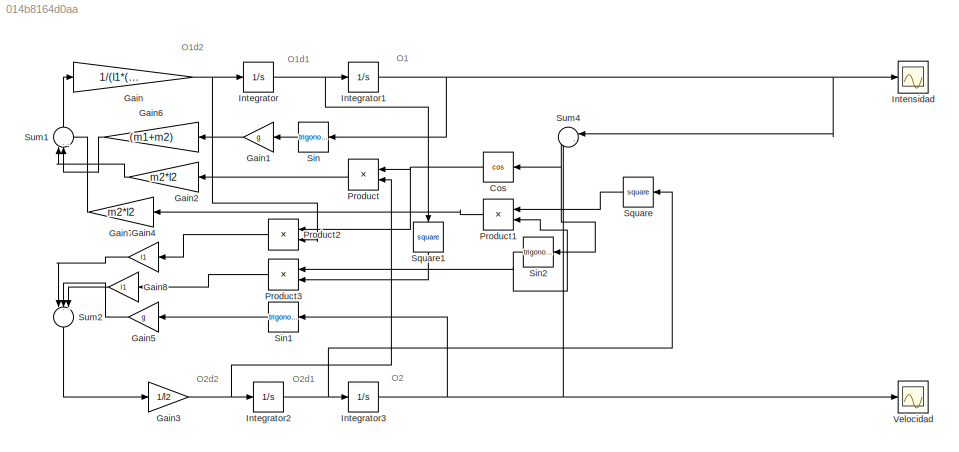
MODEL slx_014b8164d0aa
KIND model
CONFIG AbsTol = auto
CONFIG EnableMultiTasking = off
CONFIG FixedStep = auto
CONFIG MaxStep = .00001
CONFIG MinStep = auto
CONFIG RelTol = 1e-3
CONFIG SampleTimeConstraint = Unconstrained
CONFIG SolverName = VariableStepAuto
CONFIG StartTime = 0.0
CONFIG StopTime = 10.0
BLOCK [Trigonometry] Cos
  NameLocation = top
  Operator = cos
BLOCK [Gain] Gain
  Gain = 1/(l1*(m1+m2))
BLOCK [Gain] Gain1
  Gain = g
  NameLocation = top
BLOCK [Gain] Gain2
  Gain = m2*l2
  NameLocation = top
BLOCK [Gain] Gain3
  Gain = 1/l2
BLOCK [Gain] Gain4
  Gain = l1
  NameLocation = top
BLOCK [Gain] Gain5
  Gain = g
  NameLocation = top
BLOCK [Gain] Gain6
  Gain = (m1+m2)
  NameLocation = top
BLOCK [Gain] Gain7
  Gain = m2*l2
  NameLocation = top
BLOCK [Gain] Gain8
  Gain = l1
  NameLocation = top
BLOCK [Integrator] Integrator
BLOCK [Integrator] Integrator1
BLOCK [Integrator] Integrator2
BLOCK [Integrator] Integrator3
  InitialCondition = (35*pi)/180
BLOCK [Scope] Intensidad
  Floating = off
  NumInputPorts = 1
  ScopeSpecificationString = Simulink.scopes.TimeScopeBlockCfg('CurrentConfiguration', extmgr.ConfigurationSet(extmgr.Configuration('Core','General UI',true),extmgr.Configuration('Core','Source UI',true),extmgr.Configuration('Sources','WiredSimulink',true),extmgr.Configuration('Visuals','Time Domain',true,'SerializedDisplays',{struct('MinYLimReal','-0.39249','MaxYLimReal','0.39137','YLabelReal','','MinYLimMag','0.00000','MaxY...<+1358ch>
BLOCK [Product] Product
  NameLocation = top
BLOCK [Product] Product1
  NameLocation = top
BLOCK [Product] Product2
  NameLocation = top
BLOCK [Product] Product3
  NameLocation = top
BLOCK [Trigonometry] Sin
  NameLocation = top
BLOCK [Trigonometry] Sin1
  NameLocation = top
BLOCK [Trigonometry] Sin2
  NameLocation = top
BLOCK [Math] Square
  NameLocation = top
  Operator = square
BLOCK [Math] Square1
  NameLocation = left
  Operator = square
BLOCK [Sum] Sum1
  Inputs = |--+
  NameLocation = right
BLOCK [Sum] Sum2
  Inputs = |---
  NameLocation = left
BLOCK [Sum] Sum4
  Inputs = |-+
  NameLocation = top
BLOCK [Scope] Velocidad
  Floating = off
  NumInputPorts = 1
  ScopeSpecificationString = Simulink.scopes.TimeScopeBlockCfg('CurrentConfiguration', extmgr.ConfigurationSet(extmgr.Configuration('Core','General UI',true),extmgr.Configuration('Core','Source UI',true),extmgr.Configuration('Sources','WiredSimulink',true,'DataLoggingVariableName','ScopeData1'),extmgr.Configuration('Visuals','Time Domain',true,'SerializedDisplays',{struct('MinYLimReal','-0.76298','MaxYLimReal','0.76351','YLab...<+1434ch>
ANNOTATION (root): O1
ANNOTATION (root): O1d1
ANNOTATION (root): O1d2
ANNOTATION (root): O2
ANNOTATION (root): O2d1
ANNOTATION (root): O2d2
NET Cos:1 -> Product2:1, Product:1
LINE Gain1:1 -> Gain6:1
LINE Gain2:1 -> Sum1:1
NET Gain3:1 -> Integrator2:1, Product:2
LINE Gain4:1 -> Sum2:1
LINE Gain5:1 -> Sum2:2
LINE Gain6:1 -> Sum1:2
LINE Gain7:1 -> Sum1:3
LINE Gain8:1 -> Sum2:3
NET Gain:1 -> Integrator:1, Product2:2
NET Integrator1:1 -> Intensidad:1, Sin:1, Sum4:1
NET Integrator2:1 -> Integrator3:1, Square:1
NET Integrator3:1 -> Sin1:1, Sum4:2, Velocidad:1
NET Integrator:1 -> Integrator1:1, Square1:1
LINE Product1:1 -> Gain7:1
LINE Product2:1 -> Gain4:1
LINE Product3:1 -> Gain8:1
LINE Product:1 -> Gain2:1
LINE Sin1:1 -> Gain5:1
NET Sin2:1 -> Product1:2, Product3:1
LINE Sin:1 -> Gain1:1
LINE Square1:1 -> Product3:2
LINE Square:1 -> Product1:1
LINE Sum1:1 -> Gain:1
LINE Sum2:1 -> Gain3:1
NET Sum4:1 -> Cos:1, Sin2:1
note: NET lines group one-source signal fan-out (src -> all destinations, sorted); 1:1 wires keep LINE
